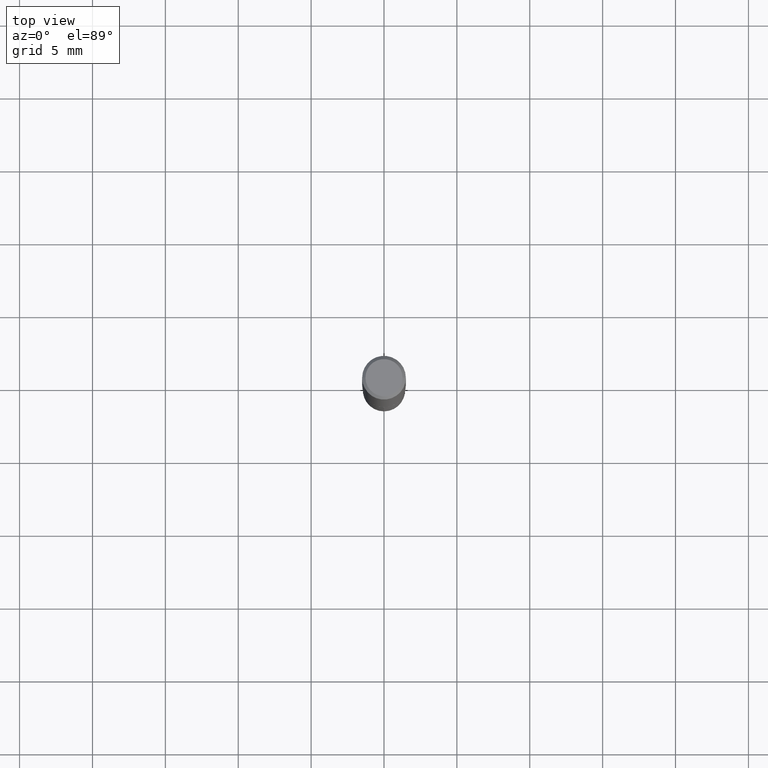
[diagram: clean part render]
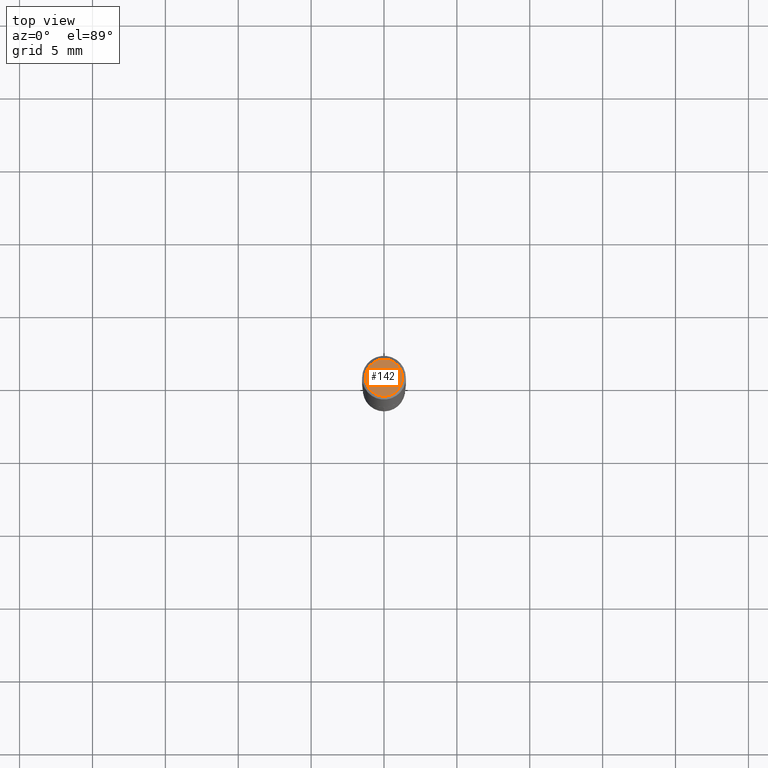
[diagram: same view with one face highlighted and labeled with its STEP entity id]
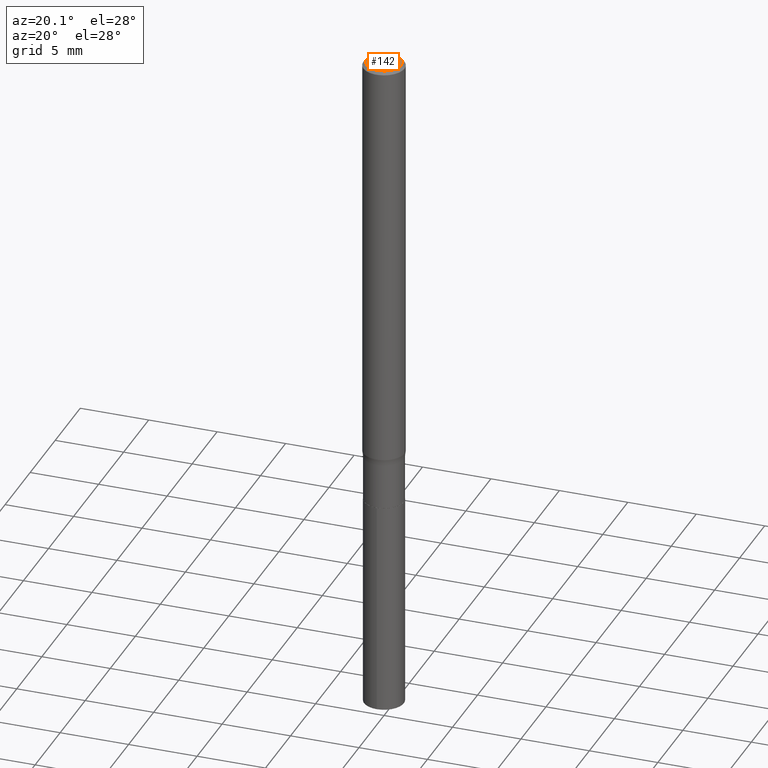
[diagram: same view with one face highlighted and labeled with its STEP entity id]
A machine part, top view. The second image highlights one B-rep face of the part: STEP entity #142.
A second angle (auxiliary view) of the same face is appended — the face is thin or edge-on in the first view.
In plain terms, the highlighted planar face has unit normal (0, -0, -1).
Its self-contained STEP definition (entity closure, byte-faithful):
#13 = EDGE_CURVE ( 'NONE', #257, #403, #395, .T. ) ;
#23 = FACE_OUTER_BOUND ( 'NONE', #126, .T. ) ;
#24 = CARTESIAN_POINT ( 'NONE',  ( 0.05019250000000000100, -3.901918742401799672E-16, -3.591276738473711219E-19 ) ) ;
#59 = CARTESIAN_POINT ( 'NONE',  ( 8.782355238379090331E-48, -1.253887571509286098E-33, -3.591276738499609681E-19 ) ) ;
#98 = EDGE_CURVE ( 'NONE', #403, #257, #122, .T. ) ;
#116 = ORIENTED_EDGE ( 'NONE', *, *, #98, .T. ) ;
#122 = CIRCLE ( 'NONE', #251, 0.05019250000000000100 ) ;
#126 = EDGE_LOOP ( 'NONE', ( #283, #116 ) ) ;
#142 = ADVANCED_FACE ( 'NONE', ( #23 ), #181, .F. ) ;
#143 = AXIS2_PLACEMENT_3D ( 'NONE', #481, #264, #389 ) ;
#148 = DIRECTION ( 'NONE',  ( -2.445468806185136597E-29, 3.491481338843145583E-15, 1.000000000000000000 ) ) ;
#181 = PLANE ( 'NONE',  #143 ) ;
#213 = DIRECTION ( 'NONE',  ( -2.445468806185136597E-29, 3.491481338843145583E-15, 1.000000000000000000 ) ) ;
#251 = AXIS2_PLACEMENT_3D ( 'NONE', #419, #148, #381 ) ;
#257 = VERTEX_POINT ( 'NONE', #399 ) ;
#264 = DIRECTION ( 'NONE',  ( 2.438088387897960049E-29, -3.491481338843145188E-15, -1.000000000000000000 ) ) ;
#283 = ORIENTED_EDGE ( 'NONE', *, *, #13, .T. ) ;
#340 = AXIS2_PLACEMENT_3D ( 'NONE', #59, #213, #370 ) ;
#370 = DIRECTION ( 'NONE',  ( 1.000000000000000000, -6.982962677686266711E-15, 4.876140833081945105E-29 ) ) ;
#381 = DIRECTION ( 'NONE',  ( 1.000000000000000000, -6.982962677686266711E-15, 4.876140833081945105E-29 ) ) ;
#389 = DIRECTION ( 'NONE',  ( -1.000000000000000000, 6.982962677686265922E-15, -4.876176775795935793E-29 ) ) ;
#395 = CIRCLE ( 'NONE', #340, 0.05019250000000000100 ) ;
#399 = CARTESIAN_POINT ( 'NONE',  ( -0.05019250000000000100, 3.659552521791692358E-16, -3.591276738524661214E-19 ) ) ;
#403 = VERTEX_POINT ( 'NONE', #24 ) ;
#419 = CARTESIAN_POINT ( 'NONE',  ( 8.782355238379090331E-48, -1.253887571509286098E-33, -3.591276738499609681E-19 ) ) ;
#481 = CARTESIAN_POINT ( 'NONE',  ( 4.391177619189545165E-48, -6.269437857546430492E-34, -1.795638369249804840E-19 ) ) ;